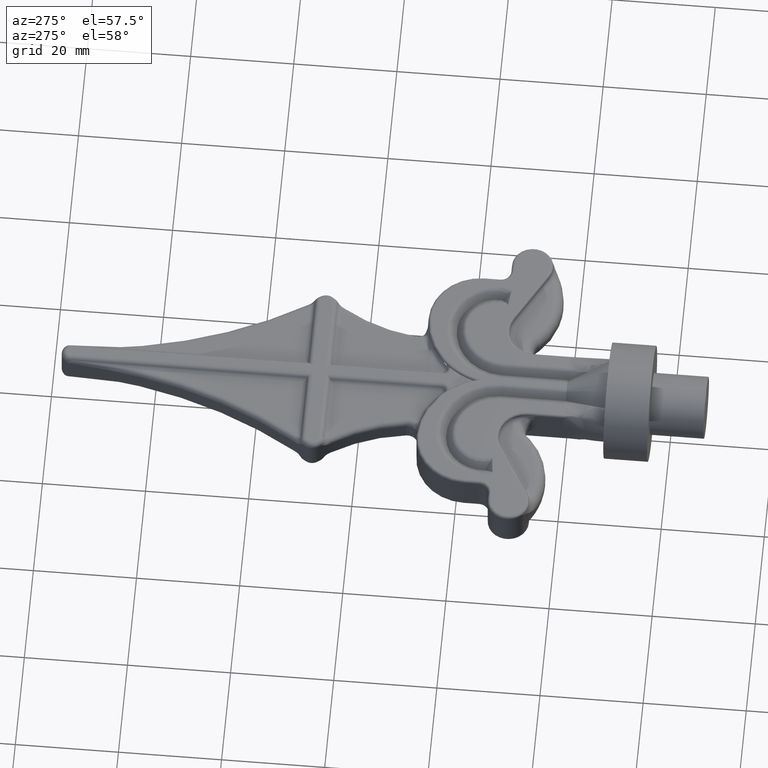
[diagram: clean part render]
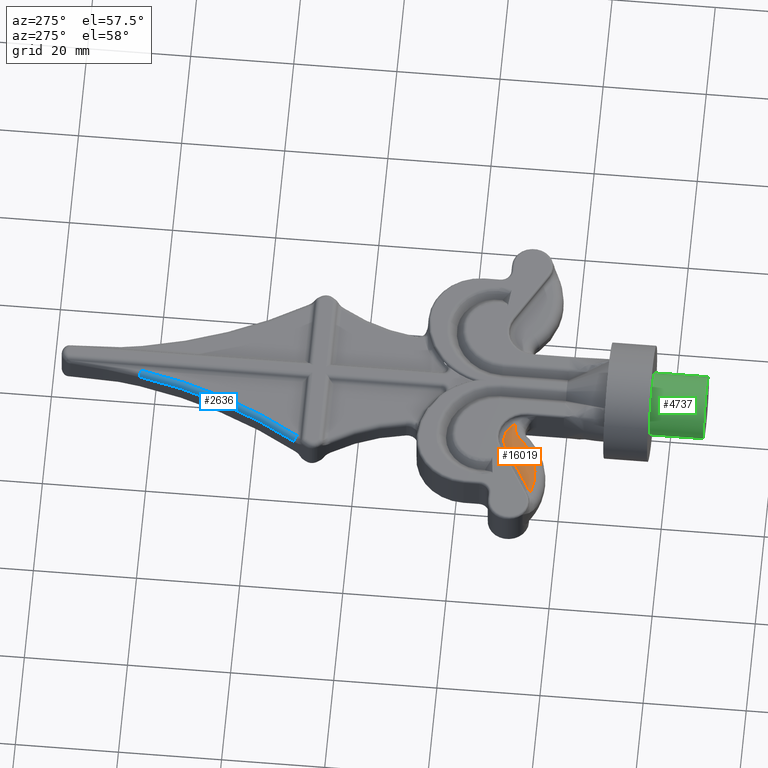
[diagram: same view with three faces highlighted in distinct colors, each labeled with its STEP entity id]
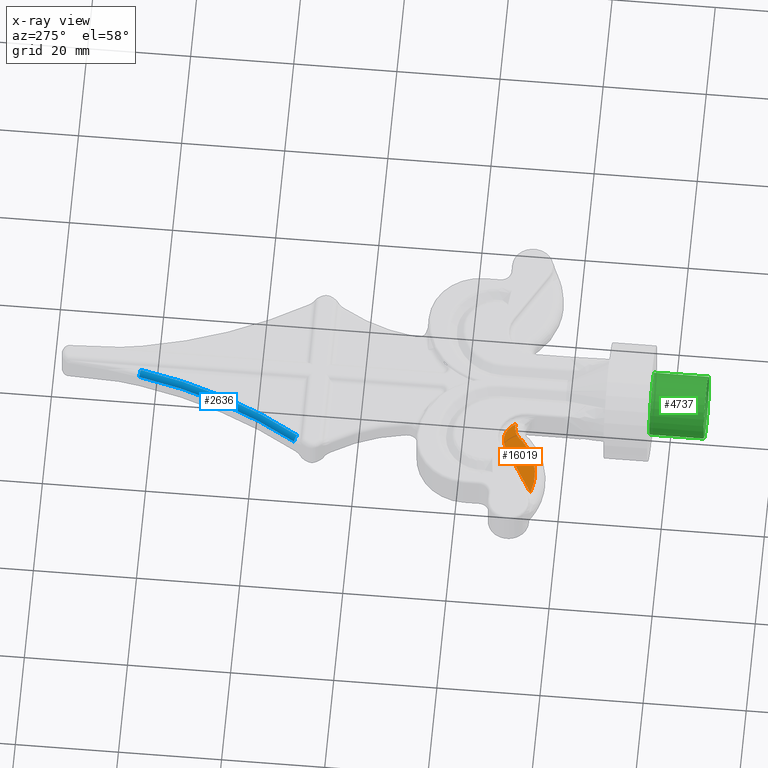
[diagram: x-ray of the same camera — body ghosted, the three highlighted faces saturated]
A machine part, auxiliary view with three faces highlighted in distinct colors.
The next image is the same camera in x-ray (body ghosted, the three faces saturated) — at least one of them is partly hidden behind the body in this view.
Their STEP definitions:

[orange] entity #16019 — the highlighted planar face has unit normal (-0, 0, -1).
#140 = EDGE_CURVE ( 'NONE', #3869, #3532, #13448, .T. ) ;
#180 = CARTESIAN_POINT ( 'NONE',  ( -14.11128624230083695, 10.65672104082276128, 2.500000000000000000 ) ) ;
#1184 = CARTESIAN_POINT ( 'NONE',  ( -24.50865828016092607, 4.681467647679816935, 2.500000000000000000 ) ) ;
#2727 = CARTESIAN_POINT ( 'NONE',  ( -15.50000000000000711, 48.10379244903953122, 2.500000000000000000 ) ) ;
#3103 = DIRECTION ( 'NONE',  ( 0.000000000000000000, 0.000000000000000000, 1.000000000000000000 ) ) ;
#3217 = CARTESIAN_POINT ( 'NONE',  ( -9.000000000000000000, 5.277751949685806743, 2.500000000000000000 ) ) ;
#3532 = VERTEX_POINT ( 'NONE', #16512 ) ;
#3545 = EDGE_CURVE ( 'NONE', #14460, #3869, #17364, .T. ) ;
#3572 = CARTESIAN_POINT ( 'NONE',  ( -23.90922472080192307, 5.025955408287141601, 2.500000000000000000 ) ) ;
#3632 = ORIENTED_EDGE ( 'NONE', *, *, #13855, .T. ) ;
#3869 = VERTEX_POINT ( 'NONE', #12634 ) ;
#4459 = CARTESIAN_POINT ( 'NONE',  ( -12.07889966233719292, 7.120221748443618104, 2.500000000000000000 ) ) ;
#7340 = AXIS2_PLACEMENT_3D ( 'NONE', #13850, #17025, #10942 ) ;
#7589 = AXIS2_PLACEMENT_3D ( 'NONE', #4459, #3103, #13446 ) ;
#7704 = DIRECTION ( 'NONE',  ( -0.000000000000000000, -0.000000000000000000, -1.000000000000000000 ) ) ;
#8944 = DIRECTION ( 'NONE',  ( -1.000000000000000000, 0.000000000000000000, 0.000000000000000000 ) ) ;
#9467 = CIRCLE ( 'NONE', #7589, 4.078899662337192034 ) ;
#9514 = FACE_OUTER_BOUND ( 'NONE', #11162, .T. ) ;
#9948 = AXIS2_PLACEMENT_3D ( 'NONE', #3217, #7704, #18241 ) ;
#10085 = ORIENTED_EDGE ( 'NONE', *, *, #17705, .T. ) ;
#10942 = DIRECTION ( 'NONE',  ( -1.000000000000000000, 0.000000000000000000, 0.000000000000000000 ) ) ;
#11023 = VERTEX_POINT ( 'NONE', #180 ) ;
#11162 = EDGE_LOOP ( 'NONE', ( #19212, #12500, #3632, #10085 ) ) ;
#12500 = ORIENTED_EDGE ( 'NONE', *, *, #140, .T. ) ;
#12634 = CARTESIAN_POINT ( 'NONE',  ( -12.21896768102275388, 7.652251279766441705, 2.500000000000000000 ) ) ;
#13030 = LINE ( 'NONE', #1184, #18699 ) ;
#13446 = DIRECTION ( 'NONE',  ( -1.000000000000000000, 0.000000000000000000, 0.000000000000000000 ) ) ;
#13448 = CIRCLE ( 'NONE', #9948, 4.000000000000000000 ) ;
#13850 = CARTESIAN_POINT ( 'NONE',  ( -20.34601364202141127, 16.49645146303154419, 2.500000000000000000 ) ) ;
#13855 = EDGE_CURVE ( 'NONE', #3532, #11023, #9467, .T. ) ;
#14460 = VERTEX_POINT ( 'NONE', #3572 ) ;
#16019 = ADVANCED_FACE ( 'NONE', ( #9514 ), #19416, .F. ) ;
#16512 = CARTESIAN_POINT ( 'NONE',  ( -8.605231763915362819, 9.258224037237560822, 2.500000000000000000 ) ) ;
#17025 = DIRECTION ( 'NONE',  ( 0.000000000000000000, 0.000000000000000000, 1.000000000000000000 ) ) ;
#17204 = AXIS2_PLACEMENT_3D ( 'NONE', #2727, #17955, #8944 ) ;
#17364 = CIRCLE ( 'NONE', #7340, 12.01119281894396451 ) ;
#17705 = EDGE_CURVE ( 'NONE', #11023, #14460, #13030, .T. ) ;
#17955 = DIRECTION ( 'NONE',  ( -0.000000000000000000, 0.000000000000000000, -1.000000000000000000 ) ) ;
#18241 = DIRECTION ( 'NONE',  ( -1.000000000000000000, 0.000000000000000000, 0.000000000000000000 ) ) ;
#18699 = VECTOR ( 'NONE', #18980, 1000.000000000000000 ) ;
#18980 = DIRECTION ( 'NONE',  ( -0.8670228701710057662, -0.4982683439678173842, -0.000000000000000000 ) ) ;
#19212 = ORIENTED_EDGE ( 'NONE', *, *, #3545, .T. ) ;
#19416 = PLANE ( 'NONE',  #17204 ) ;

[blue] entity #2636 — the highlighted toroidal blend (fillet) surface has major radius 90.5172 mm and minor (blend) radius 1 mm.
#708 = ORIENTED_EDGE ( 'NONE', *, *, #8726, .F. ) ;
#737 = VERTEX_POINT ( 'NONE', #10569 ) ;
#760 = DIRECTION ( 'NONE',  ( -1.000000000000000000, 0.000000000000000000, 0.000000000000000000 ) ) ;
#1128 = AXIS2_PLACEMENT_3D ( 'NONE', #19006, #2587, #16134 ) ;
#1551 = CARTESIAN_POINT ( 'NONE',  ( -14.78207323130877882, 51.04541091754501991, 2.500000000000000000 ) ) ;
#1786 = EDGE_CURVE ( 'NONE', #18753, #737, #15780, .T. ) ;
#2189 = DIRECTION ( 'NONE',  ( 0.1845017151449189763, 0.9828321917339618574, -8.001486415496914563E-17 ) ) ;
#2288 = ORIENTED_EDGE ( 'NONE', *, *, #11433, .F. ) ;
#2587 = DIRECTION ( 'NONE',  ( 0.5313626579839308972, 0.8471444538567505234, 9.217672770621597986E-16 ) ) ;
#2636 = ADVANCED_FACE ( 'NONE', ( #15277 ), #11465, .T. ) ;
#4333 = AXIS2_PLACEMENT_3D ( 'NONE', #18575, #18634, #760 ) ;
#5103 = DIRECTION ( 'NONE',  ( -1.000000000000000000, 0.000000000000000000, 0.000000000000000000 ) ) ;
#6206 = AXIS2_PLACEMENT_3D ( 'NONE', #11213, #2189, #11143 ) ;
#7322 = ORIENTED_EDGE ( 'NONE', *, *, #1786, .F. ) ;
#7618 = VERTEX_POINT ( 'NONE', #1551 ) ;
#7913 = EDGE_CURVE ( 'NONE', #16529, #7618, #15285, .T. ) ;
#8037 = CARTESIAN_POINT ( 'NONE',  ( -91.46321172284538648, 99.14286747362201879, 2.500000000000000000 ) ) ;
#8726 = EDGE_CURVE ( 'NONE', #737, #7618, #14068, .T. ) ;
#9022 = EDGE_LOOP ( 'NONE', ( #16372, #708, #7322, #2288 ) ) ;
#10569 = CARTESIAN_POINT ( 'NONE',  ( -2.500000000000000000, 82.44229001420113434, 2.500000000000000000 ) ) ;
#11143 = DIRECTION ( 'NONE',  ( -0.9828321917339619684, 0.1845017151449190873, 0.000000000000000000 ) ) ;
#11213 = CARTESIAN_POINT ( 'NONE',  ( -2.500000000000000444, 82.44229001420113434, 1.500000000000000000 ) ) ;
#11433 = EDGE_CURVE ( 'NONE', #16529, #18753, #18266, .T. ) ;
#11465 = TOROIDAL_SURFACE ( 'NONE', #4333, 90.51719354643033455, 1.000000000000000000 ) ;
#11999 = CARTESIAN_POINT ( 'NONE',  ( -15.62921768516552845, 51.57677357552895359, 1.500000000000000000 ) ) ;
#13190 = CARTESIAN_POINT ( 'NONE',  ( -91.46321172284538648, 99.14286747362201879, 1.500000000000000000 ) ) ;
#13324 = DIRECTION ( 'NONE',  ( 0.000000000000000000, 0.000000000000000000, 1.000000000000000000 ) ) ;
#14068 = CIRCLE ( 'NONE', #14729, 90.51719354643033455 ) ;
#14729 = AXIS2_PLACEMENT_3D ( 'NONE', #8037, #17003, #5103 ) ;
#15277 = FACE_OUTER_BOUND ( 'NONE', #9022, .T. ) ;
#15285 = CIRCLE ( 'NONE', #1128, 1.000000000000001554 ) ;
#15780 = CIRCLE ( 'NONE', #6206, 1.000000000000000000 ) ;
#15783 = AXIS2_PLACEMENT_3D ( 'NONE', #13190, #13324, #17676 ) ;
#16134 = DIRECTION ( 'NONE',  ( -0.8471444538567505234, 0.5313626579839308972, 0.000000000000000000 ) ) ;
#16372 = ORIENTED_EDGE ( 'NONE', *, *, #7913, .T. ) ;
#16529 = VERTEX_POINT ( 'NONE', #11999 ) ;
#17003 = DIRECTION ( 'NONE',  ( -0.000000000000000000, -0.000000000000000000, -1.000000000000000000 ) ) ;
#17676 = DIRECTION ( 'NONE',  ( -1.000000000000000000, -3.565673888270157710E-15, 0.000000000000000000 ) ) ;
#17741 = CARTESIAN_POINT ( 'NONE',  ( -3.482832191733962635, 82.62679172934605276, 1.500000000000000000 ) ) ;
#18266 = CIRCLE ( 'NONE', #15783, 89.51719354643033455 ) ;
#18575 = CARTESIAN_POINT ( 'NONE',  ( -91.46321172284538648, 99.14286747362201879, 1.500000000000000000 ) ) ;
#18634 = DIRECTION ( 'NONE',  ( -0.000000000000000000, -0.000000000000000000, -1.000000000000000000 ) ) ;
#18753 = VERTEX_POINT ( 'NONE', #17741 ) ;
#19006 = CARTESIAN_POINT ( 'NONE',  ( -14.78207323130877704, 51.04541091754501991, 1.500000000000000000 ) ) ;

[green] entity #4737 — the highlighted cylindrical surface (bore or boss wall) has radius 6 mm, axis along (-0, 1, -0).
#651 = CARTESIAN_POINT ( 'NONE',  ( 0.000000000000000000, -27.00000000000000355, -6.000000000000000888 ) ) ;
#1489 = DIRECTION ( 'NONE',  ( -0.000000000000000000, 1.000000000000000000, -0.000000000000000000 ) ) ;
#1578 = AXIS2_PLACEMENT_3D ( 'NONE', #10821, #6553, #17103 ) ;
#1645 = EDGE_CURVE ( 'NONE', #5692, #5692, #17644, .T. ) ;
#1864 = ORIENTED_EDGE ( 'NONE', *, *, #1645, .T. ) ;
#4737 = ADVANCED_FACE ( 'NONE', ( #10623, #12263 ), #16548, .T. ) ;
#4978 = EDGE_LOOP ( 'NONE', ( #1864 ) ) ;
#5692 = VERTEX_POINT ( 'NONE', #6911 ) ;
#6553 = DIRECTION ( 'NONE',  ( 0.000000000000000000, -1.000000000000000000, 0.000000000000000000 ) ) ;
#6729 = AXIS2_PLACEMENT_3D ( 'NONE', #8893, #1489, #10273 ) ;
#6911 = CARTESIAN_POINT ( 'NONE',  ( 0.000000000000000000, -16.50000000000000000, -6.000000000000000888 ) ) ;
#7668 = CIRCLE ( 'NONE', #9955, 6.000000000000000888 ) ;
#8893 = CARTESIAN_POINT ( 'NONE',  ( 0.000000000000000000, -27.00000000000000355, 0.000000000000000000 ) ) ;
#9055 = CARTESIAN_POINT ( 'NONE',  ( 0.000000000000000000, -27.00000000000000355, 0.000000000000000000 ) ) ;
#9955 = AXIS2_PLACEMENT_3D ( 'NONE', #9055, #16571, #11947 ) ;
#10273 = DIRECTION ( 'NONE',  ( 0.000000000000000000, 0.000000000000000000, 1.000000000000000000 ) ) ;
#10623 = FACE_OUTER_BOUND ( 'NONE', #17718, .T. ) ;
#10821 = CARTESIAN_POINT ( 'NONE',  ( 0.000000000000000000, -16.50000000000000000, 0.000000000000000000 ) ) ;
#11562 = EDGE_CURVE ( 'NONE', #12269, #12269, #7668, .T. ) ;
#11947 = DIRECTION ( 'NONE',  ( 0.000000000000000000, 0.000000000000000000, -1.000000000000000000 ) ) ;
#12263 = FACE_OUTER_BOUND ( 'NONE', #4978, .T. ) ;
#12269 = VERTEX_POINT ( 'NONE', #651 ) ;
#14652 = ORIENTED_EDGE ( 'NONE', *, *, #11562, .F. ) ;
#16548 = CYLINDRICAL_SURFACE ( 'NONE', #6729, 6.000000000000000888 ) ;
#16571 = DIRECTION ( 'NONE',  ( 0.000000000000000000, -1.000000000000000000, 0.000000000000000000 ) ) ;
#17103 = DIRECTION ( 'NONE',  ( 0.000000000000000000, 0.000000000000000000, -1.000000000000000000 ) ) ;
#17644 = CIRCLE ( 'NONE', #1578, 6.000000000000000888 ) ;
#17718 = EDGE_LOOP ( 'NONE', ( #14652 ) ) ;